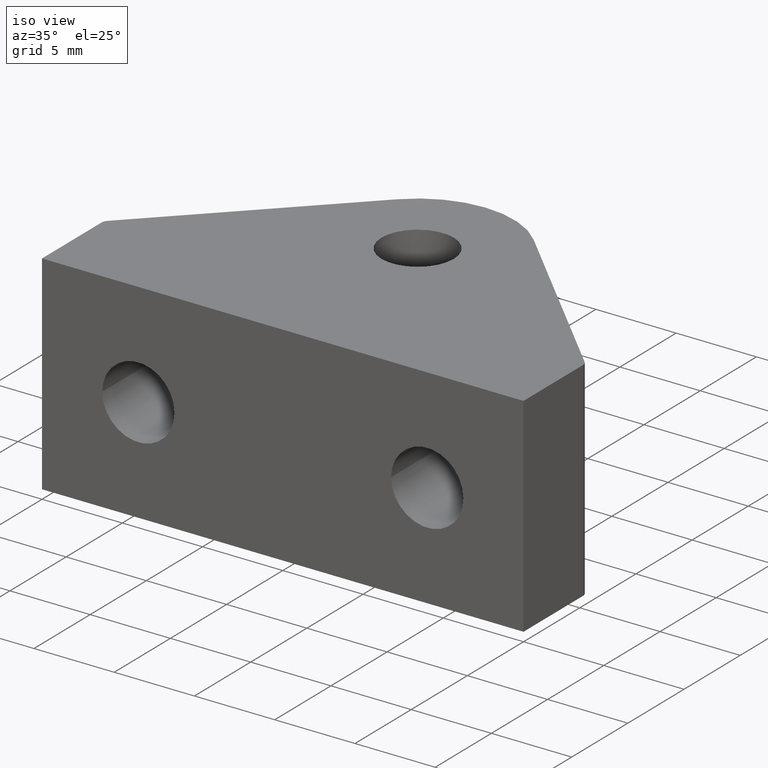
[diagram: clean part render]
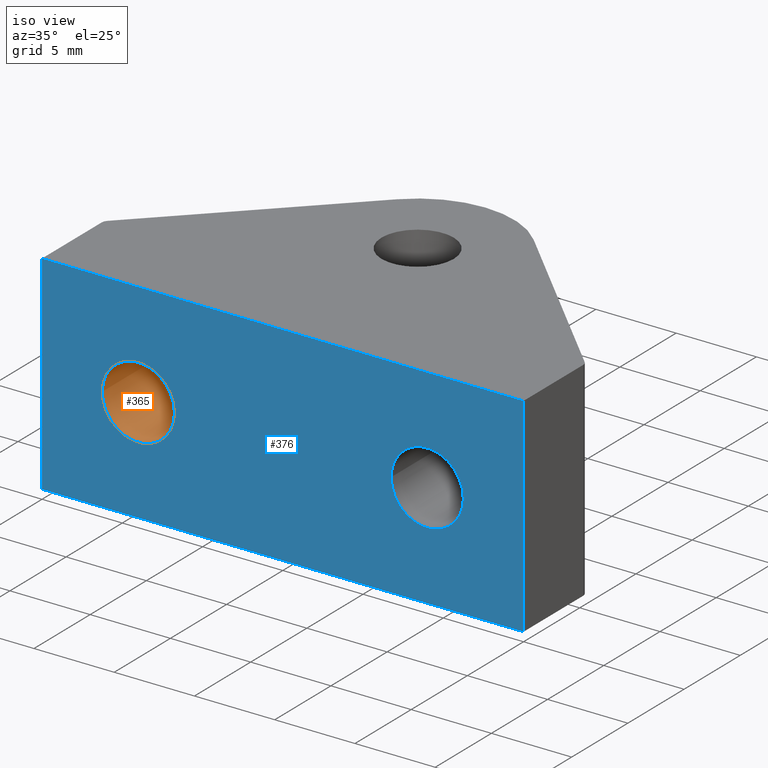
[diagram: same view with the hole feature highlighted: cylindrical wall and planar end face, labeled with their STEP entity ids]
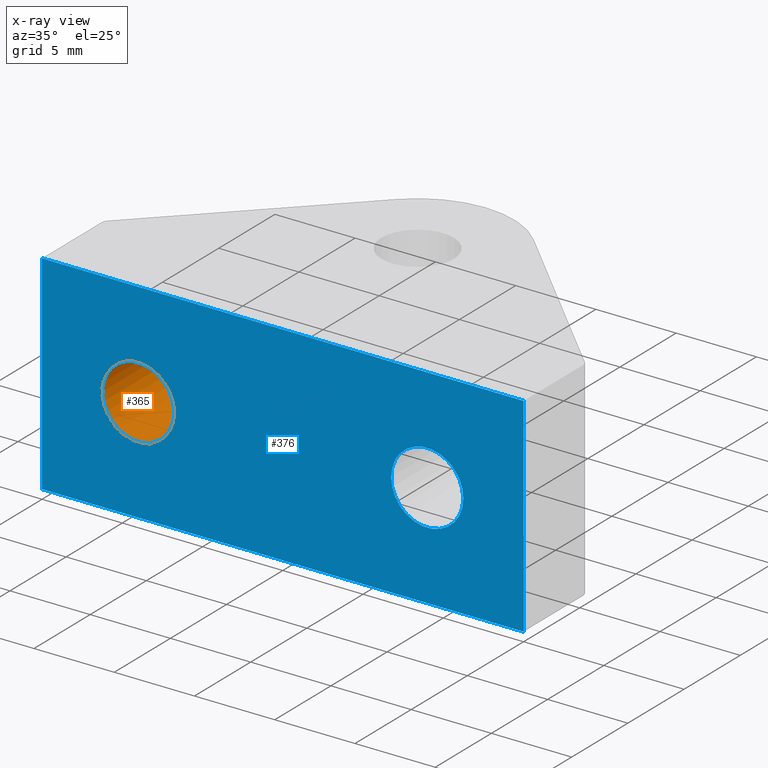
[diagram: x-ray of the same camera — body ghosted, the hole faces saturated]
A machine part, iso view. The highlighted faces form one hole feature of diameter 4.5 mm: the cylindrical wall (entity #365, orange) and its adjacent planar end face (entity #376, blue) — they share a circular edge in the B-rep.
The next image is the same camera in x-ray (body ghosted, the hole faces saturated) — the bore reads through the body.
Wall:
#16=CYLINDRICAL_SURFACE('',#392,2.25);
#24=CIRCLE('',#389,2.25);
#25=CIRCLE('',#393,2.25);
#39=FACE_BOUND('',#81,.T.);
#57=FACE_OUTER_BOUND('',#80,.T.);
#80=EDGE_LOOP('',(#278));
#81=EDGE_LOOP('',(#279));
#183=VERTEX_POINT('',#569);
#184=VERTEX_POINT('',#574);
#221=EDGE_CURVE('',#183,#183,#24,.T.);
#223=EDGE_CURVE('',#184,#184,#25,.T.);
#278=ORIENTED_EDGE('',*,*,#223,.F.);
#279=ORIENTED_EDGE('',*,*,#221,.F.);
#365=ADVANCED_FACE('',(#57,#39),#16,.F.);
#389=AXIS2_PLACEMENT_3D('',#570,#454,#455);
#392=AXIS2_PLACEMENT_3D('',#573,#460,#461);
#393=AXIS2_PLACEMENT_3D('',#575,#462,#463);
#454=DIRECTION('center_axis',(0.,-1.,0.));
#455=DIRECTION('ref_axis',(1.,0.,0.));
#460=DIRECTION('center_axis',(0.,-1.,0.));
#461=DIRECTION('ref_axis',(1.,0.,0.));
#462=DIRECTION('center_axis',(0.,1.,0.));
#463=DIRECTION('ref_axis',(1.,0.,0.));
#569=CARTESIAN_POINT('',(3.75,6.,6.5));
#570=CARTESIAN_POINT('Origin',(6.,6.,6.5));
#573=CARTESIAN_POINT('Origin',(6.,-21.3300159009524,6.5));
#574=CARTESIAN_POINT('',(3.75,0.,6.5));
#575=CARTESIAN_POINT('Origin',(6.,0.,6.5));
End face:
#25=CIRCLE('',#393,2.25);
#28=CIRCLE('',#399,2.25);
#45=FACE_BOUND('',#98,.T.);
#46=FACE_BOUND('',#99,.T.);
#68=FACE_OUTER_BOUND('',#97,.T.);
#97=EDGE_LOOP('',(#326,#327,#328,#329));
#98=EDGE_LOOP('',(#330));
#99=EDGE_LOOP('',(#331));
#124=LINE('',#602,#156);
#128=LINE('',#612,#160);
#132=LINE('',#625,#164);
#133=LINE('',#626,#165);
#156=VECTOR('',#493,13.);
#160=VECTOR('',#503,30.);
#164=VECTOR('',#519,13.);
#165=VECTOR('',#520,30.);
#184=VERTEX_POINT('',#574);
#186=VERTEX_POINT('',#582);
#193=VERTEX_POINT('',#599);
#194=VERTEX_POINT('',#601);
#197=VERTEX_POINT('',#610);
#200=VERTEX_POINT('',#624);
#223=EDGE_CURVE('',#184,#184,#25,.T.);
#226=EDGE_CURVE('',#186,#186,#28,.T.);
#234=EDGE_CURVE('',#193,#194,#124,.T.);
#240=EDGE_CURVE('',#193,#197,#128,.T.);
#246=EDGE_CURVE('',#197,#200,#132,.T.);
#247=EDGE_CURVE('',#194,#200,#133,.T.);
#326=ORIENTED_EDGE('',*,*,#240,.T.);
#327=ORIENTED_EDGE('',*,*,#246,.T.);
#328=ORIENTED_EDGE('',*,*,#247,.F.);
#329=ORIENTED_EDGE('',*,*,#234,.F.);
#330=ORIENTED_EDGE('',*,*,#223,.T.);
#331=ORIENTED_EDGE('',*,*,#226,.T.);
#355=PLANE('',#415);
#376=ADVANCED_FACE('',(#68,#45,#46),#355,.T.);
#393=AXIS2_PLACEMENT_3D('',#575,#462,#463);
#399=AXIS2_PLACEMENT_3D('',#583,#474,#475);
#415=AXIS2_PLACEMENT_3D('',#623,#517,#518);
#462=DIRECTION('center_axis',(0.,1.,0.));
#463=DIRECTION('ref_axis',(1.,0.,0.));
#474=DIRECTION('center_axis',(0.,1.,0.));
#475=DIRECTION('ref_axis',(1.,0.,0.));
#493=DIRECTION('',(0.,0.,1.));
#503=DIRECTION('',(1.,0.,0.));
#517=DIRECTION('center_axis',(0.,-1.,0.));
#518=DIRECTION('ref_axis',(1.,0.,0.));
#519=DIRECTION('',(0.,0.,1.));
#520=DIRECTION('',(1.,0.,0.));
#574=CARTESIAN_POINT('',(3.75,0.,6.5));
#575=CARTESIAN_POINT('Origin',(6.,0.,6.5));
#582=CARTESIAN_POINT('',(21.75,0.,6.5));
#583=CARTESIAN_POINT('Origin',(24.,0.,6.5));
#599=CARTESIAN_POINT('',(0.,0.,0.));
#601=CARTESIAN_POINT('',(0.,0.,13.));
#602=CARTESIAN_POINT('',(0.,0.,0.));
#610=CARTESIAN_POINT('',(30.,0.,0.));
#612=CARTESIAN_POINT('',(0.,0.,0.));
#623=CARTESIAN_POINT('Origin',(15.,0.,0.));
#624=CARTESIAN_POINT('',(30.,0.,13.));
#625=CARTESIAN_POINT('',(30.,0.,0.));
#626=CARTESIAN_POINT('',(0.,0.,13.));